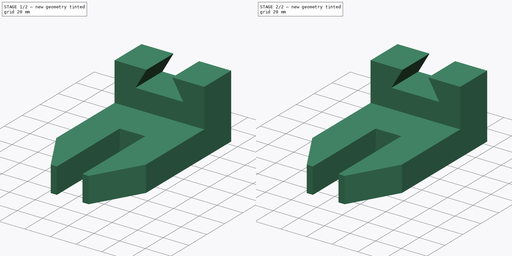
[diagram: build sequence overview — one tinted view per stage of 2, left to right]
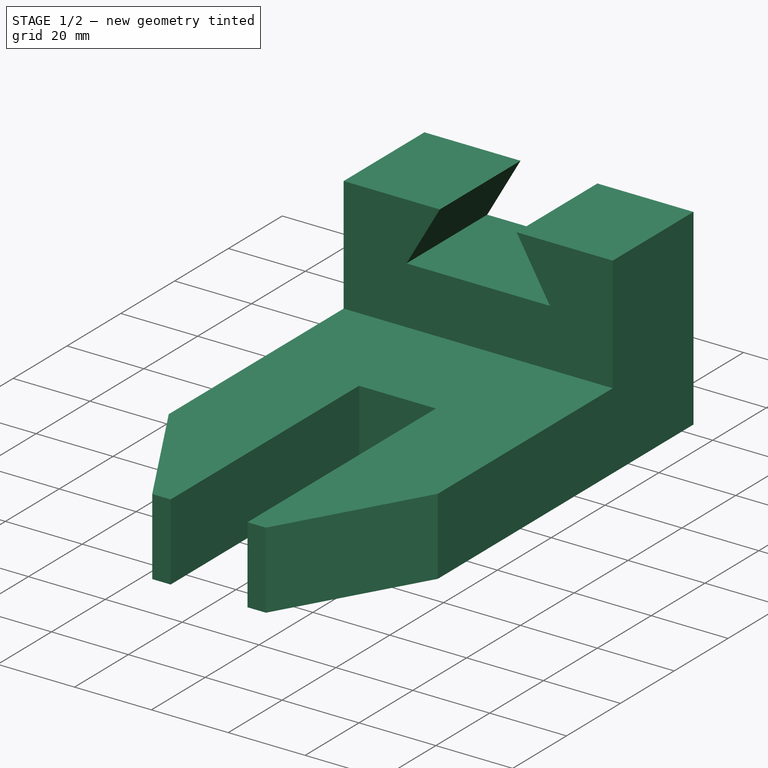
[diagram: stage 1 of 2 — iso view after this stage's code; geometry added in this stage tinted green]
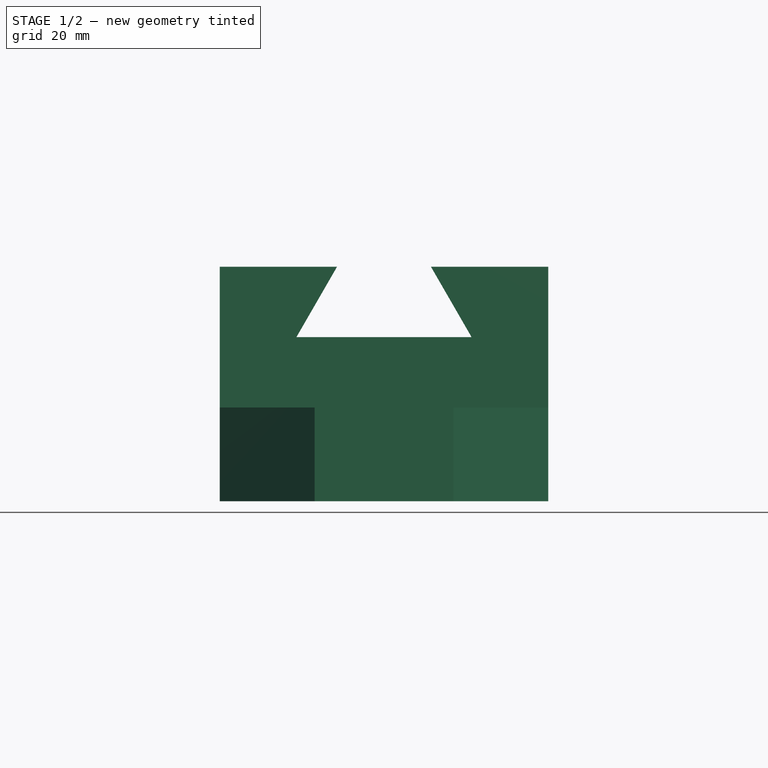
[diagram: stage 1 of 2 — front view after this stage's code; geometry added in this stage tinted green]
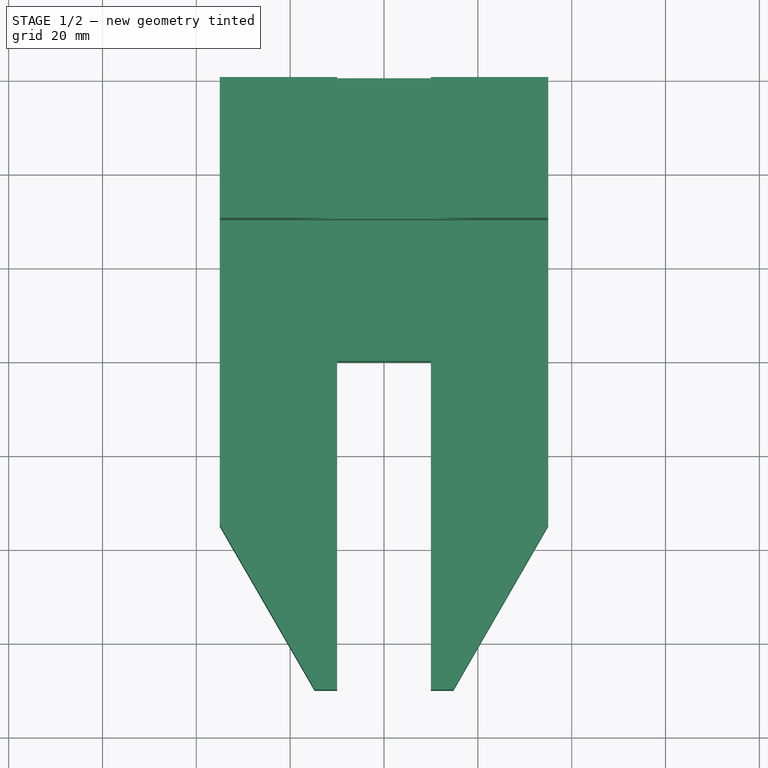
[diagram: stage 1 of 2 — top view after this stage's code; geometry added in this stage tinted green]
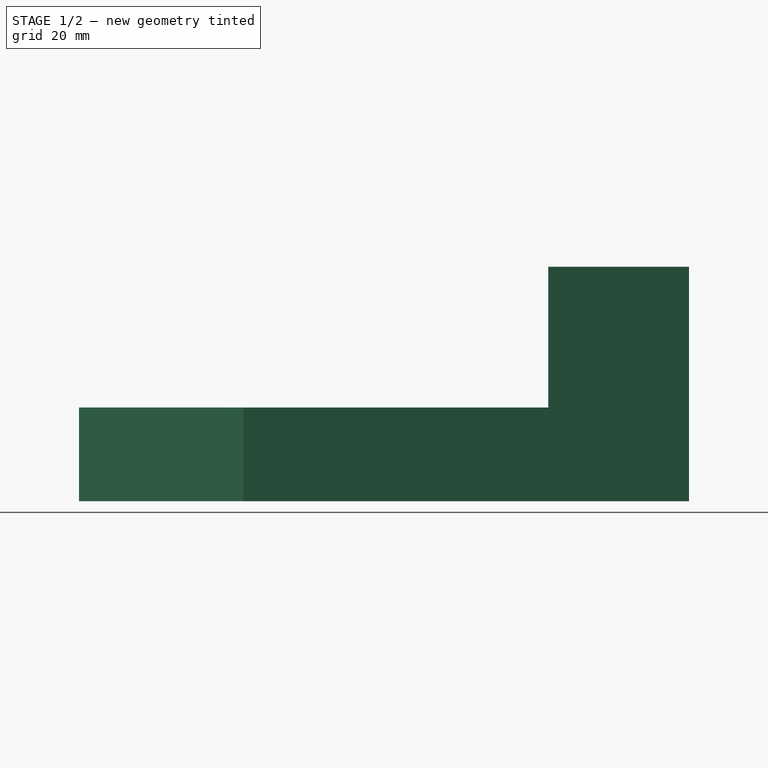
[diagram: stage 1 of 2 — right view after this stage's code; geometry added in this stage tinted green]
FCSTD DOCUMENT  (FreeCAD 0.16R)
Label: ejer2 final
License: All rights reserved
LicenseURL: http://en.wikipedia.org/wiki/All_rights_reserved
objects: Sketcher::SketchObject×2, PartDesign::Pad×2, Part::MultiFuse×1
note: 7 computed .brp shape members not serialized (recipe doc carries the construction recipe); baked Part::Feature solids carry a one-line shape summary decoded from their .brp

FEATURE [Sketcher::SketchObject] Sketch
  sketch-geometry (12):
    g0: LineSegment StartX=-35 StartY=-30 StartZ=0 EndX=35 EndY=-30 EndZ=0
    g1: LineSegment StartX=35 StartY=-30 StartZ=0 EndX=35 EndY=-95 EndZ=0
    g2: LineSegment StartX=35 StartY=-95 StartZ=0 EndX=14.7927 EndY=-130 EndZ=0
    g3: LineSegment StartX=10 StartY=-130 StartZ=0 EndX=10 EndY=-60 EndZ=0
    g4: LineSegment StartX=10 StartY=-60 StartZ=0 EndX=-10 EndY=-60 EndZ=0
    g5: LineSegment StartX=-10 StartY=-60 StartZ=0 EndX=-10 EndY=-130 EndZ=0
    g6: LineSegment StartX=-10 StartY=-130 StartZ=0 EndX=-14.7927 EndY=-130 EndZ=0
    g7: LineSegment StartX=-14.7927 StartY=-130 StartZ=0 EndX=-35 EndY=-95 EndZ=0
    g8: LineSegment StartX=-35 StartY=-95 StartZ=0 EndX=-35 EndY=-30 EndZ=0
    g9: LineSegment StartX=10 StartY=-130 StartZ=0 EndX=14.7927 EndY=-130 EndZ=0
    g10: LineSegment [constr] StartX=35 StartY=-30 StartZ=0 EndX=35 EndY=-131.646 EndZ=0
    g11: LineSegment [constr] StartX=-35 StartY=-30 StartZ=0 EndX=-35 EndY=-133.355 EndZ=0
  constraints (34):
    c: DistanceY(g0,g-1) = 30
    c: Horizontal(g0)
    c: Symmetric(g0,g0,g-2)
    c: Coincident(g1,g2)
    c: Coincident(g3,g4)
    c: Coincident(g4,g5)
    c: Coincident(g5,g6)
    c: Coincident(g6,g7)
    c: Coincident(g7,g8)
    c: Coincident(g0,g8)
    c: Vertical(g3)
    c: Vertical(g5)
    c: Vertical(g8)
    c: Horizontal(g4)
    c: Vertical(g1)
    c: Symmetric(g3,g4,g-2)
    c: Coincident(g2,g9)
    c: Coincident(g0,g1)
    c: DistanceX(g0,g0) = 70
    c: DistanceX(g4,g4) = 20
    c: Coincident(g3,g9)
    c: DistanceY(g1,g1) = 65
    c: DistanceY(g8,g8) = 65
    c: DistanceY(g5,g5) = 70
    c: Vertical(g10)
    c: Coincident(g0,g10)
    c: Angle(g2,g10) = 0.523599
    c: PointOnObject(g7,g11)
    c: Coincident(g0,g11)
    c: Angle(g11,g7) = 0.523599
    c: DistanceY(g3,g3) = 70
    c: Horizontal(g6)
    c: Horizontal(g9)
    c: DistanceY(g3,g-1) = 60
FEATURE [PartDesign::Pad] Pad
  Length = 20
  Length2 = 100
  Sketch = -> Sketch
  Type = 0
FEATURE [Sketcher::SketchObject] Sketch001
  Placement = pos=(0,0,0) rot=(-1,0,0;4.71239rad)
  sketch-geometry (8):
    g0: LineSegment StartX=-35 StartY=0 StartZ=0 EndX=35 EndY=0 EndZ=0
    g1: LineSegment StartX=-35 StartY=0 StartZ=0 EndX=-35 EndY=50 EndZ=0
    g2: LineSegment StartX=-35 StartY=50 StartZ=0 EndX=-10 EndY=50 EndZ=0
    g3: LineSegment StartX=-10 StartY=50 StartZ=0 EndX=-18.6603 EndY=35 EndZ=0
    g4: LineSegment StartX=-18.6603 StartY=35 StartZ=0 EndX=18.6603 EndY=35 EndZ=0
    g5: LineSegment StartX=18.6603 StartY=35 StartZ=0 EndX=10 EndY=50 EndZ=0
    g6: LineSegment StartX=10 StartY=50 StartZ=0 EndX=35 EndY=50 EndZ=0
    g7: LineSegment StartX=35 StartY=50 StartZ=0 EndX=35 EndY=0 EndZ=0
  constraints (23):
    c: PointOnObject(g-1,g0)
    c: DistanceX(g0,g0) = 70
    c: Coincident(g1,g2)
    c: Coincident(g2,g3)
    c: Coincident(g3,g4)
    c: Coincident(g4,g5)
    c: Coincident(g5,g6)
    c: Coincident(g6,g7)
    c: Coincident(g0,g7)
    c: Coincident(g0,g1)
    c: Horizontal(g4)
    c: Vertical(g1)
    c: Vertical(g7)
    c: Horizontal(g2)
    c: Horizontal(g6)
    c: Symmetric(g0,g0,g-2)
    c: DistanceY(g1,g1) = 50
    c: Equal(g7,g1)
    c: Equal(g2,g6)
    c: DistanceX(g2,g2) = 25
    c: Symmetric(g4,g3,g-2)
    c: DistanceY(g4,g5) = 15
    c: Angle(g5,g4) = 1.0472
FEATURE [PartDesign::Pad] Pad001
  Length = 30
  Length2 = 100
  Placement = pos=(0,0,0) rot=(-1,0,0;4.71239rad)
  Sketch = -> Sketch001
  Type = 0
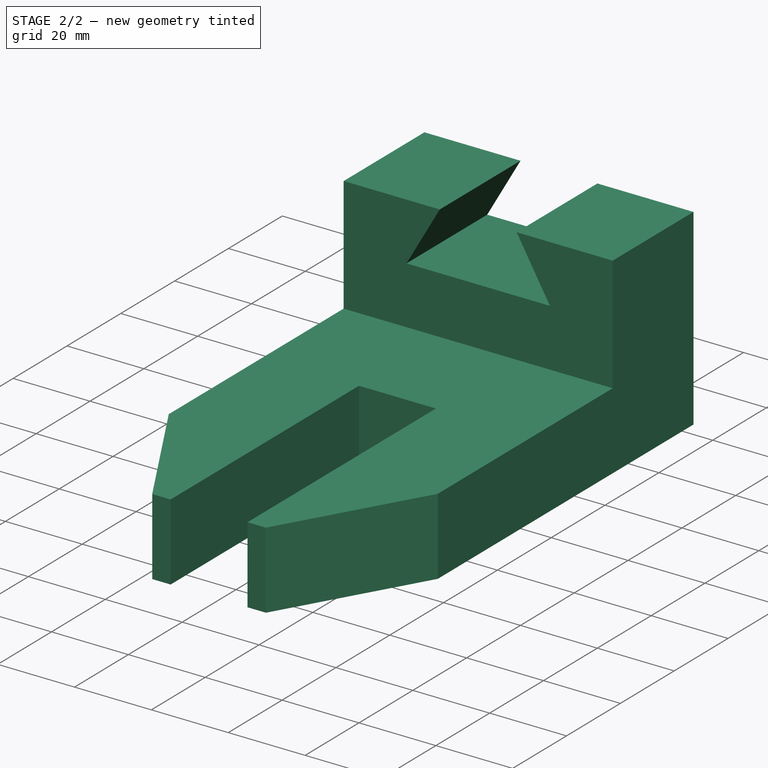
[diagram: stage 2 of 2 — iso view after this stage's code; geometry added in this stage tinted green]
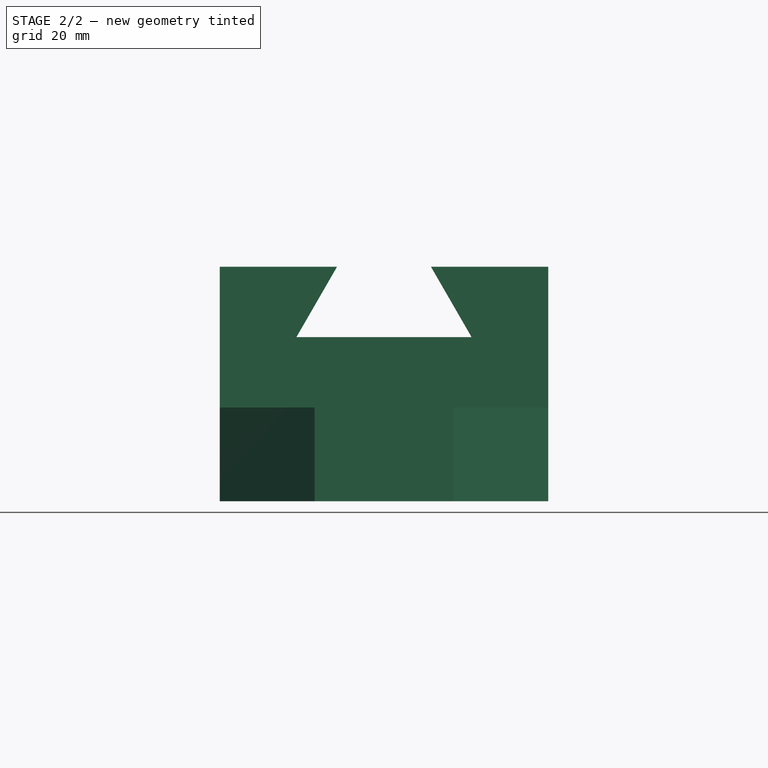
[diagram: stage 2 of 2 — front view after this stage's code; geometry added in this stage tinted green]
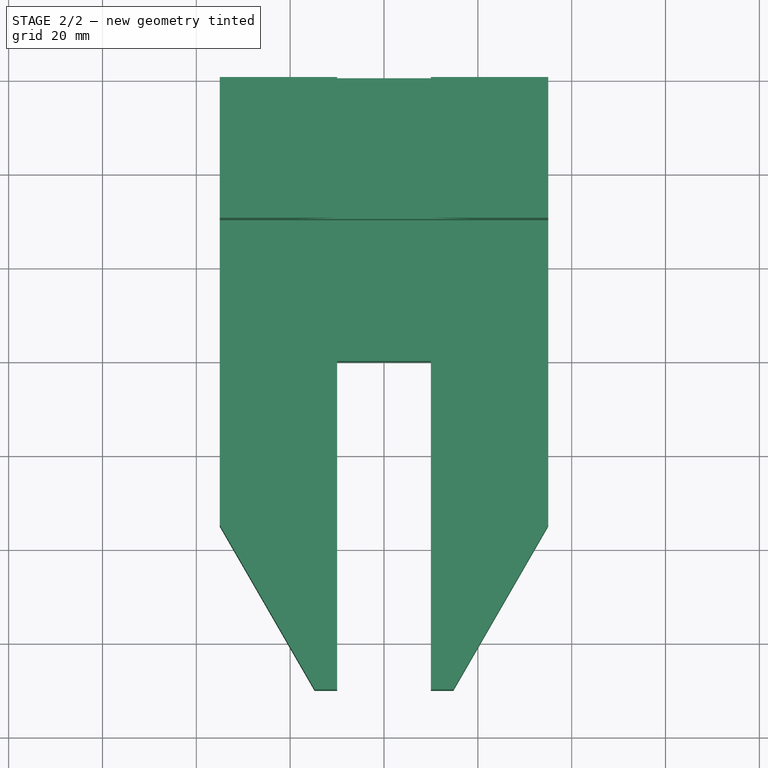
[diagram: stage 2 of 2 — top view after this stage's code; geometry added in this stage tinted green]
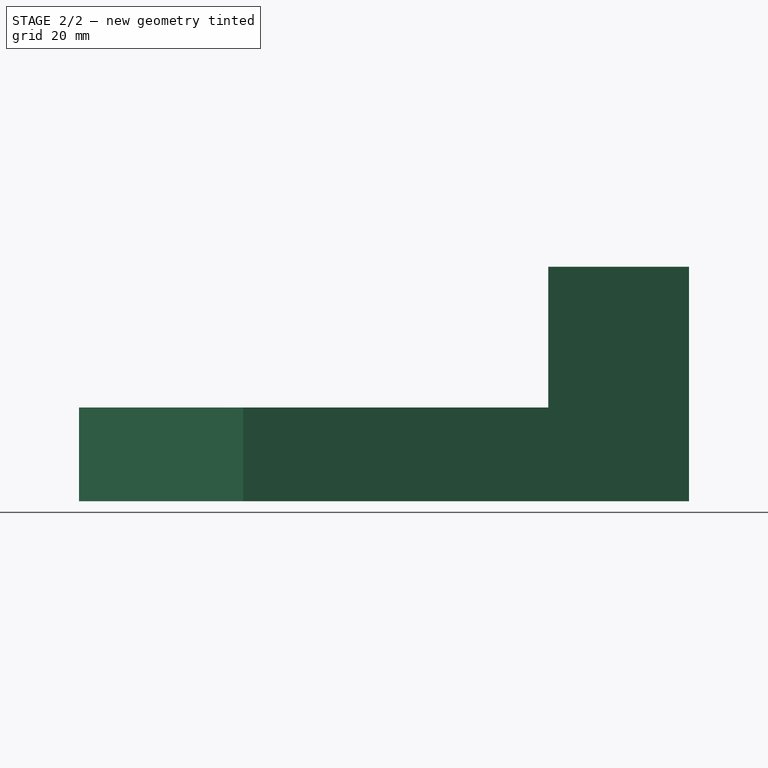
[diagram: stage 2 of 2 — right view after this stage's code; geometry added in this stage tinted green]
FEATURE [Part::MultiFuse] Fusion
  Shapes = -> [Pad001,Pad]
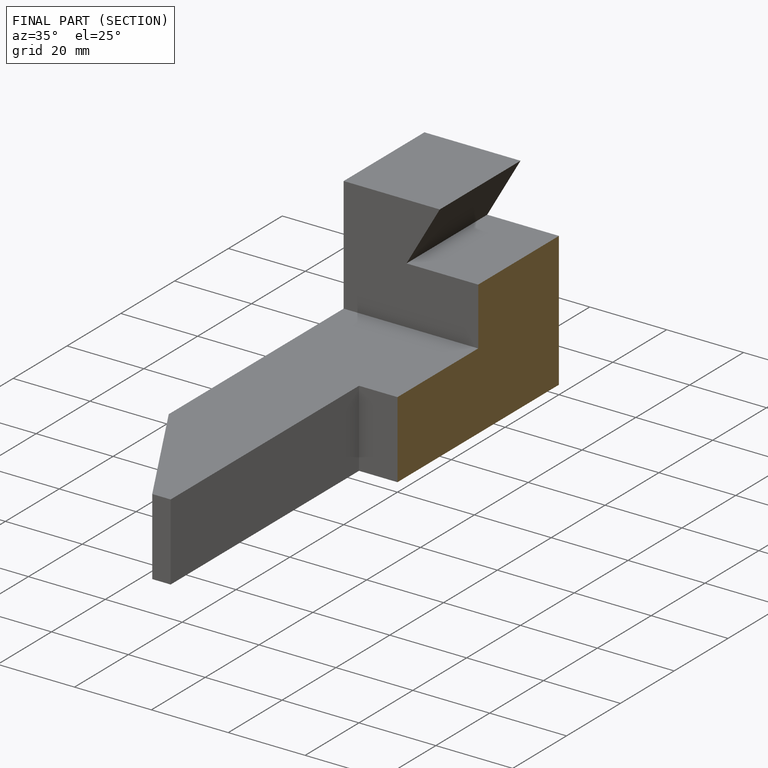
[diagram: finished part — half-section view (interior)]
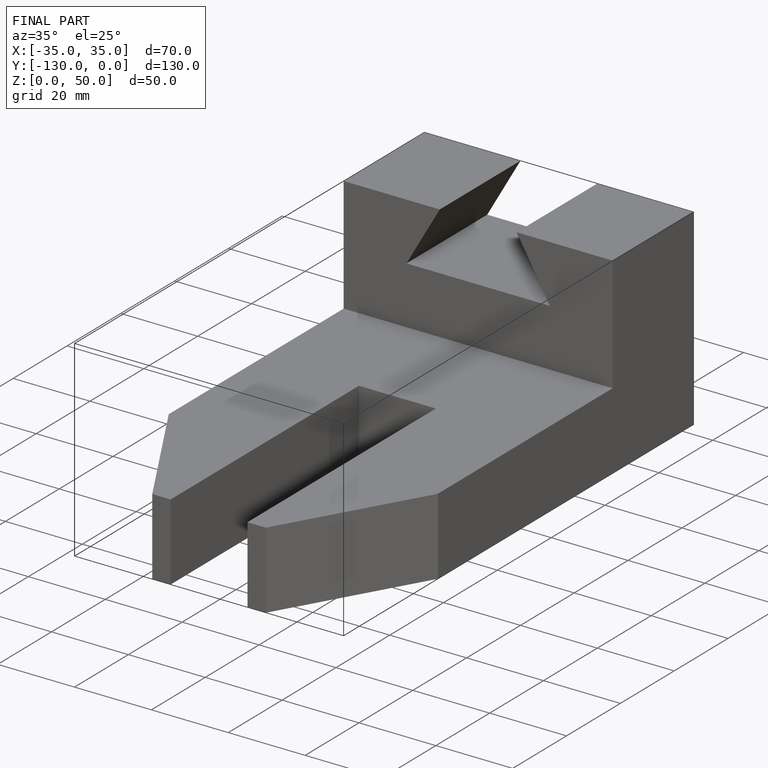
[diagram: finished part — iso view with bounding-box wireframe]
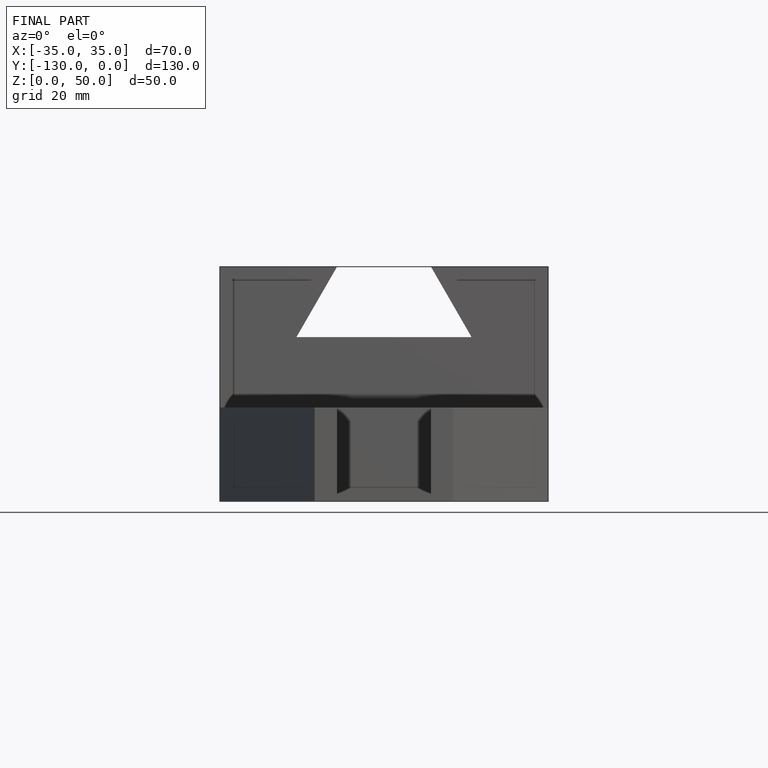
[diagram: finished part — front view with bounding-box wireframe]
